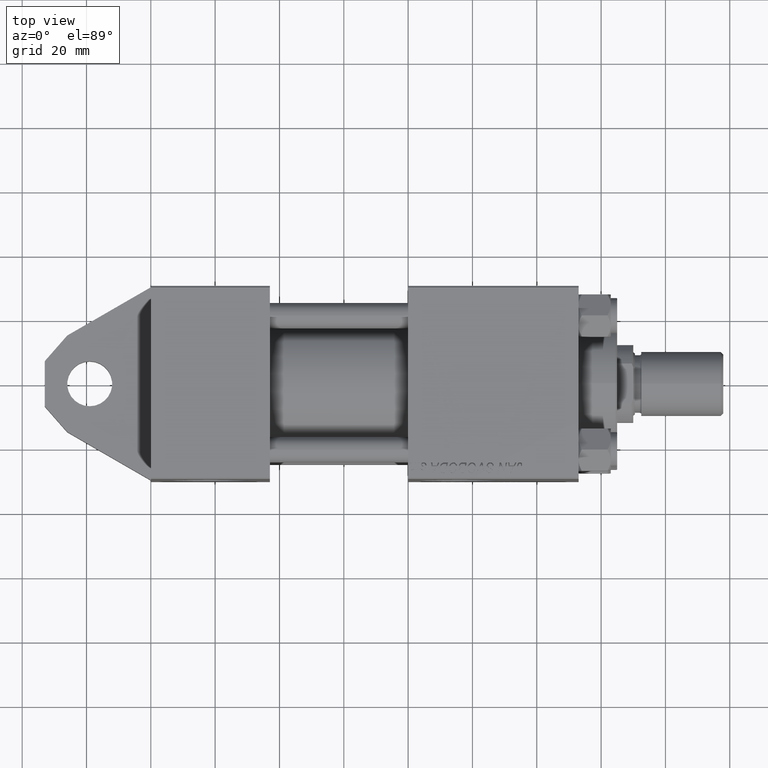
[diagram: clean part render]
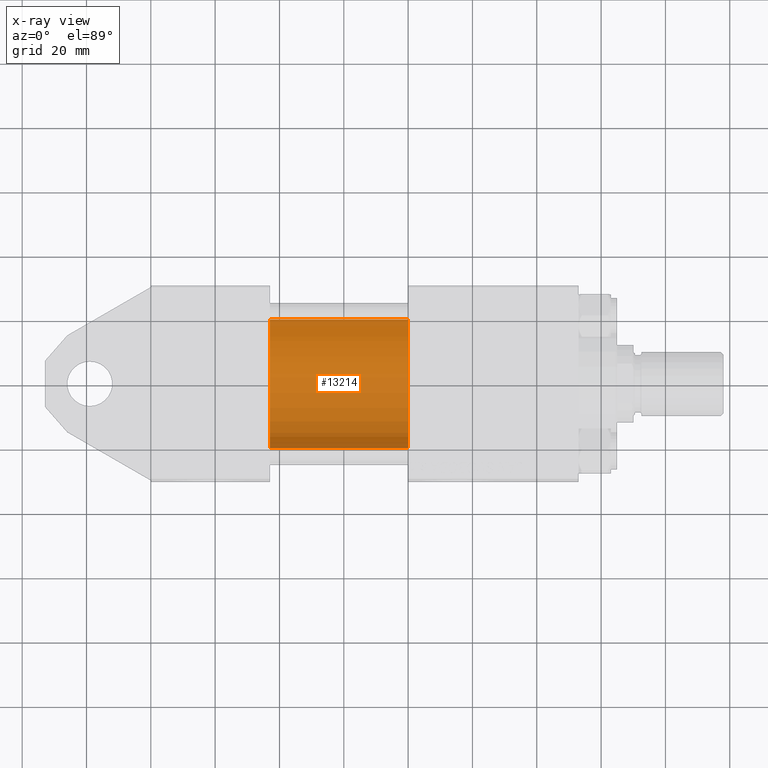
[diagram: x-ray — body ghosted, one internal face saturated and labeled with its STEP entity id]
A machine part, top view, then the same camera in x-ray: the body is ghosted and one INTERNAL B-rep face — a face not visible from any outside direction — is saturated and labeled: STEP entity #13214.
In plain terms, the highlighted cylindrical surface (partial cylindrical patch) has radius 20 mm, axis along (-1, -0, 0).
Its self-contained STEP definition (entity closure, byte-faithful):
#1003 = CARTESIAN_POINT ( 'NONE',  ( 79.99999999999998579, -2.602085213965210642E-15, 20.00000000000000000 ) ) ;
#4910 = CYLINDRICAL_SURFACE ( 'NONE', #25707, 20.00000000000000000 ) ;
#5309 = CARTESIAN_POINT ( 'NONE',  ( 37.00000000000000000, -2.602085213965210642E-15, 0.000000000000000000 ) ) ;
#6080 = CIRCLE ( 'NONE', #42866, 20.00000000000000000 ) ;
#7280 = VERTEX_POINT ( 'NONE', #23529 ) ;
#8133 = DIRECTION ( 'NONE',  ( 0.000000000000000000, 0.000000000000000000, -1.000000000000000000 ) ) ;
#10292 = VERTEX_POINT ( 'NONE', #25445 ) ;
#12691 = CARTESIAN_POINT ( 'NONE',  ( 79.99999999999998579, -1.527916156705042519E-16, -20.00000000000000000 ) ) ;
#12819 = EDGE_LOOP ( 'NONE', ( #35866, #29533, #25823, #19225 ) ) ;
#12830 = DIRECTION ( 'NONE',  ( 0.000000000000000000, 0.000000000000000000, -1.000000000000000000 ) ) ;
#13214 = ADVANCED_FACE ( 'NONE', ( #40668 ), #4910, .F. ) ;
#13784 = CARTESIAN_POINT ( 'NONE',  ( 79.99999999999998579, -2.602085213965210642E-15, 20.00000000000000000 ) ) ;
#15733 = DIRECTION ( 'NONE',  ( 0.000000000000000000, 0.000000000000000000, 1.000000000000000000 ) ) ;
#15768 = VECTOR ( 'NONE', #31431, 1000.000000000000000 ) ;
#16134 = DIRECTION ( 'NONE',  ( 1.000000000000000000, 0.000000000000000000, 0.000000000000000000 ) ) ;
#18788 = DIRECTION ( 'NONE',  ( -1.000000000000000000, -0.000000000000000000, -0.000000000000000000 ) ) ;
#19225 = ORIENTED_EDGE ( 'NONE', *, *, #34454, .F. ) ;
#19808 = DIRECTION ( 'NONE',  ( -1.000000000000000000, -0.000000000000000000, -0.000000000000000000 ) ) ;
#20321 = VERTEX_POINT ( 'NONE', #1003 ) ;
#20453 = EDGE_CURVE ( 'NONE', #44152, #10292, #20656, .T. ) ;
#20656 = LINE ( 'NONE', #23350, #37199 ) ;
#23350 = CARTESIAN_POINT ( 'NONE',  ( 79.99999999999998579, -1.527916156705042519E-16, -20.00000000000000000 ) ) ;
#23529 = CARTESIAN_POINT ( 'NONE',  ( 37.00000000000000000, -2.602085213965210642E-15, 20.00000000000000000 ) ) ;
#25445 = CARTESIAN_POINT ( 'NONE',  ( 37.00000000000000000, -1.527916156705042519E-16, -20.00000000000000000 ) ) ;
#25707 = AXIS2_PLACEMENT_3D ( 'NONE', #43725, #18788, #15733 ) ;
#25823 = ORIENTED_EDGE ( 'NONE', *, *, #42595, .F. ) ;
#26944 = CARTESIAN_POINT ( 'NONE',  ( 79.99999999999998579, -2.602085213965210642E-15, 0.000000000000000000 ) ) ;
#29533 = ORIENTED_EDGE ( 'NONE', *, *, #20453, .T. ) ;
#31431 = DIRECTION ( 'NONE',  ( -1.000000000000000000, -0.000000000000000000, -0.000000000000000000 ) ) ;
#31623 = AXIS2_PLACEMENT_3D ( 'NONE', #5309, #34237, #8133 ) ;
#32398 = CIRCLE ( 'NONE', #31623, 20.00000000000000000 ) ;
#34237 = DIRECTION ( 'NONE',  ( 1.000000000000000000, 0.000000000000000000, 0.000000000000000000 ) ) ;
#34454 = EDGE_CURVE ( 'NONE', #20321, #7280, #42241, .T. ) ;
#35866 = ORIENTED_EDGE ( 'NONE', *, *, #41280, .T. ) ;
#37199 = VECTOR ( 'NONE', #19808, 1000.000000000000000 ) ;
#40668 = FACE_OUTER_BOUND ( 'NONE', #12819, .T. ) ;
#41280 = EDGE_CURVE ( 'NONE', #20321, #44152, #6080, .T. ) ;
#42241 = LINE ( 'NONE', #13784, #15768 ) ;
#42595 = EDGE_CURVE ( 'NONE', #7280, #10292, #32398, .T. ) ;
#42866 = AXIS2_PLACEMENT_3D ( 'NONE', #26944, #16134, #12830 ) ;
#43725 = CARTESIAN_POINT ( 'NONE',  ( 79.99999999999998579, -2.602085213965210642E-15, 0.000000000000000000 ) ) ;
#44152 = VERTEX_POINT ( 'NONE', #12691 ) ;